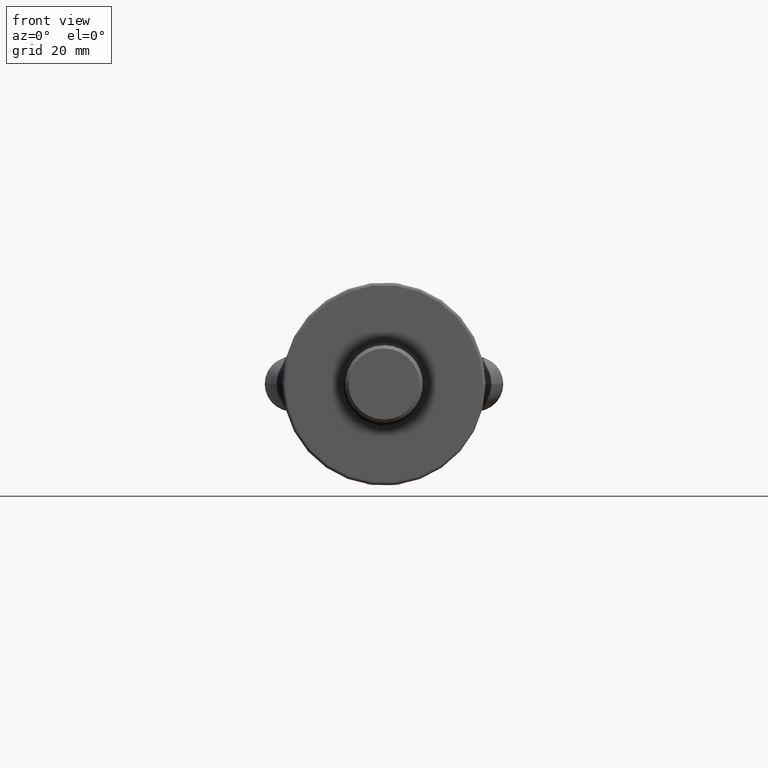
[diagram: clean part render]
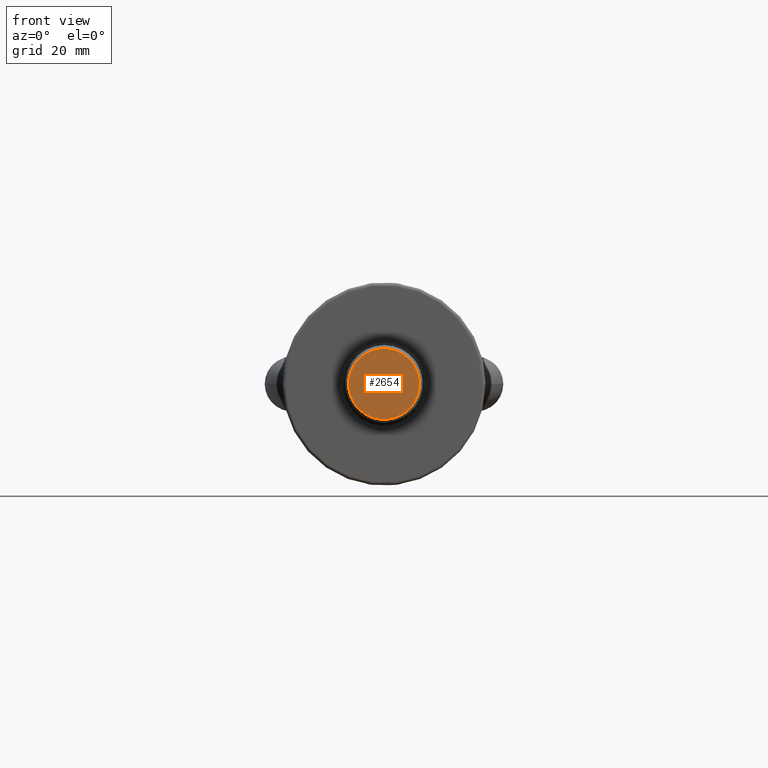
[diagram: same view with one face highlighted and labeled with its STEP entity id]
A machine part, front view. The second image highlights one B-rep face of the part: STEP entity #2654.
In plain terms, the highlighted planar face has unit normal (0, 1, 0).
Its self-contained STEP definition (entity closure, byte-faithful):
#1811=FACE_OUTER_BOUND('',#3078,.T.);
#2654=ADVANCED_FACE('',(#1811),#2889,.F.);
#2889=PLANE('',#5632);
#3078=EDGE_LOOP('',(#3422));
#3422=ORIENTED_EDGE('',*,*,#4975,.T.);
#4565=VERTEX_POINT('',#6652);
#4975=EDGE_CURVE('',#4565,#4565,#5547,.T.);
#5547=CIRCLE('',#5631,11.);
#5631=AXIS2_PLACEMENT_3D('',#6651,#5897,#5898);
#5632=AXIS2_PLACEMENT_3D('',#6653,#5899,#5900);
#5897=DIRECTION('',(0.,-1.,0.));
#5898=DIRECTION('',(0.,0.,1.));
#5899=DIRECTION('',(0.,1.,0.));
#5900=DIRECTION('',(0.,0.,1.));
#6651=CARTESIAN_POINT('',(0.,-40.,0.));
#6652=CARTESIAN_POINT('',(0.,-40.,11.));
#6653=CARTESIAN_POINT('',(0.,-40.,0.));